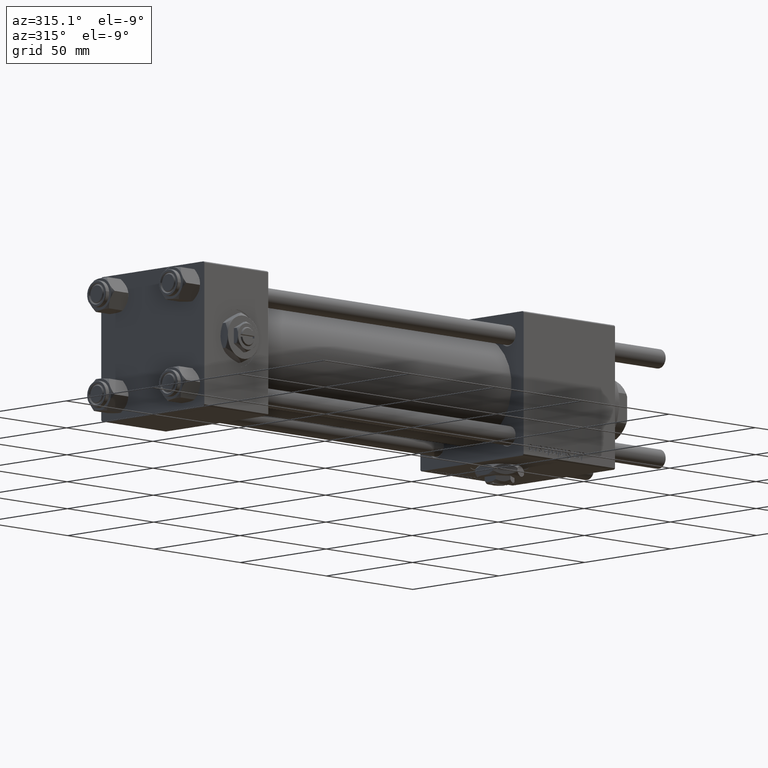
[diagram: clean part render]
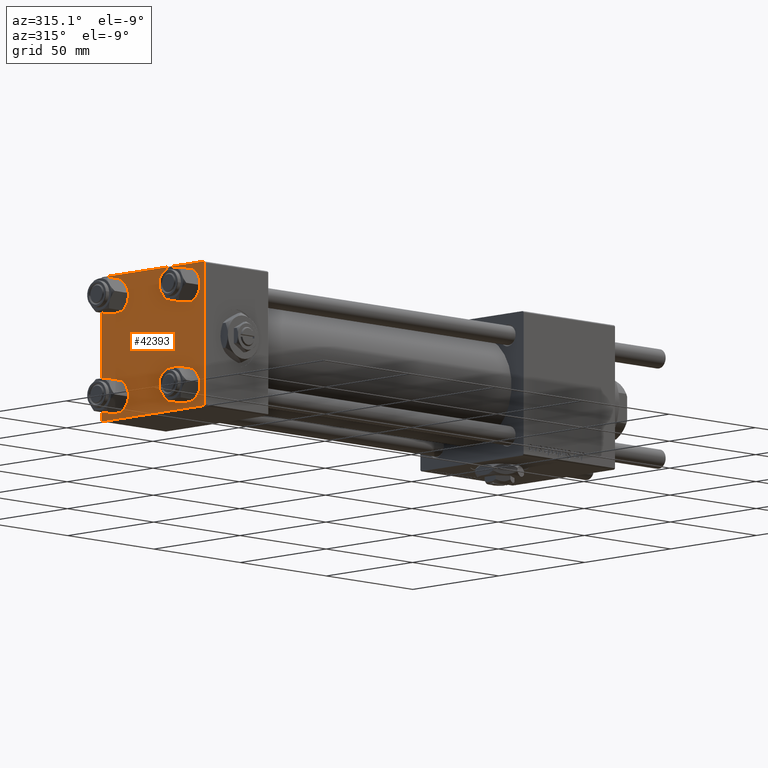
[diagram: same view with one face highlighted and labeled with its STEP entity id]
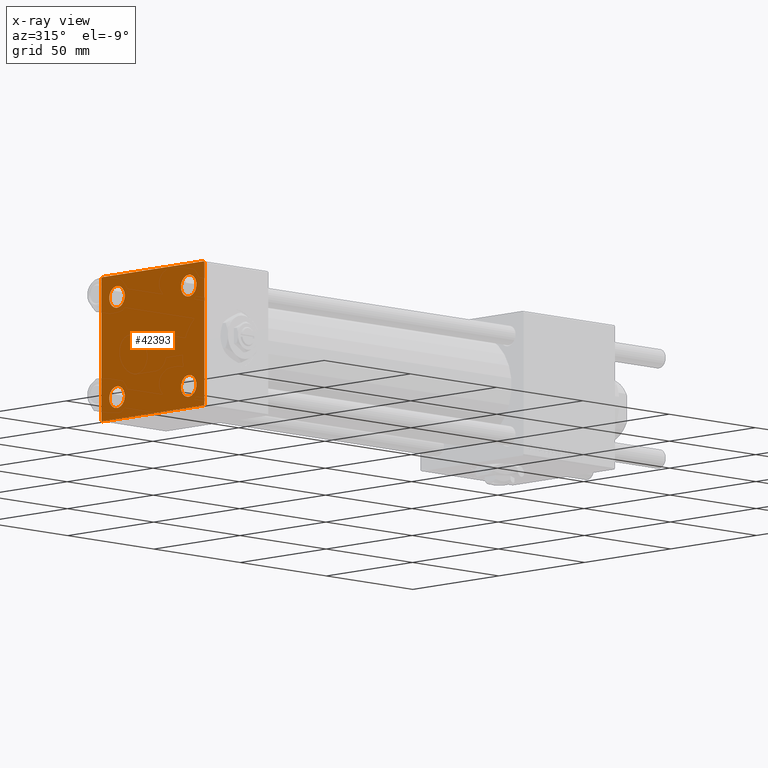
[diagram: x-ray of the same camera — body ghosted, the highlighted face saturated]
A machine part, auxiliary view. The second image highlights one B-rep face of the part: STEP entity #42393.
The next image is the same camera in x-ray: the body ghosted, the highlighted face saturated — about 0% of this face is hidden behind the body in this view.
In plain terms, the highlighted planar face has unit normal (-1, 0, 0).
Its self-contained STEP definition (entity closure, byte-faithful):
#295 = CARTESIAN_POINT ( 'NONE',  ( 0.000000000000000000, 29.74999999999957723, -29.75000000000040501 ) ) ;
#990 = CARTESIAN_POINT ( 'NONE',  ( 0.000000000000000000, 20.84999999999999787, 25.35000000000001918 ) ) ;
#1857 = VERTEX_POINT ( 'NONE', #57124 ) ;
#1952 = VERTEX_POINT ( 'NONE', #47504 ) ;
#3067 = FACE_BOUND ( 'NONE', #30590, .T. ) ;
#4146 = DIRECTION ( 'NONE',  ( -0.000000000000000000, 0.7071067811865474617, 0.7071067811865474617 ) ) ;
#4484 = EDGE_CURVE ( 'NONE', #39561, #18019, #29228, .T. ) ;
#4547 = CIRCLE ( 'NONE', #45555, 4.500000000000017764 ) ;
#4677 = DIRECTION ( 'NONE',  ( 0.000000000000000000, 0.7071067811865474617, -0.7071067811865474617 ) ) ;
#4901 = VECTOR ( 'NONE', #41477, 1000.000000000000114 ) ;
#5150 = CIRCLE ( 'NONE', #56682, 4.500000000000017764 ) ;
#5725 = CARTESIAN_POINT ( 'NONE',  ( 0.000000000000000000, -20.84999999999999076, -25.35000000000002274 ) ) ;
#7630 = EDGE_LOOP ( 'NONE', ( #45533, #48905, #54033, #34002, #16167, #29853, #8205, #13067 ) ) ;
#8205 = ORIENTED_EDGE ( 'NONE', *, *, #20134, .F. ) ;
#8341 = EDGE_CURVE ( 'NONE', #52049, #35534, #5150, .T. ) ;
#8523 = CARTESIAN_POINT ( 'NONE',  ( 0.000000000000000000, 29.99999999999999289, -29.50000000000000000 ) ) ;
#9985 = EDGE_CURVE ( 'NONE', #18019, #17246, #13731, .T. ) ;
#10493 = VERTEX_POINT ( 'NONE', #31193 ) ;
#10597 = ORIENTED_EDGE ( 'NONE', *, *, #18493, .T. ) ;
#11152 = FACE_BOUND ( 'NONE', #15571, .T. ) ;
#11453 = PLANE ( 'NONE',  #52217 ) ;
#11723 = CARTESIAN_POINT ( 'NONE',  ( 0.000000000000000000, 29.99999999999999289, 29.50000000000000000 ) ) ;
#11736 = FACE_BOUND ( 'NONE', #23504, .T. ) ;
#12021 = CARTESIAN_POINT ( 'NONE',  ( 0.000000000000000000, 0.000000000000000000, 0.000000000000000000 ) ) ;
#12153 = EDGE_CURVE ( 'NONE', #17246, #1857, #25354, .T. ) ;
#13067 = ORIENTED_EDGE ( 'NONE', *, *, #27996, .T. ) ;
#13088 = CARTESIAN_POINT ( 'NONE',  ( -0.000000000000000000, -29.74999999999999645, 29.74999999999999645 ) ) ;
#13187 = LINE ( 'NONE', #55507, #4901 ) ;
#13247 = AXIS2_PLACEMENT_3D ( 'NONE', #18181, #22961, #53716 ) ;
#13731 = LINE ( 'NONE', #295, #19513 ) ;
#14886 = VERTEX_POINT ( 'NONE', #57578 ) ;
#15571 = EDGE_LOOP ( 'NONE', ( #55574, #32541 ) ) ;
#16167 = ORIENTED_EDGE ( 'NONE', *, *, #55206, .F. ) ;
#16275 = VECTOR ( 'NONE', #28865, 1000.000000000000000 ) ;
#16599 = VECTOR ( 'NONE', #39978, 1000.000000000000000 ) ;
#17246 = VERTEX_POINT ( 'NONE', #17715 ) ;
#17499 = DIRECTION ( 'NONE',  ( 0.000000000000000000, 0.000000000000000000, 1.000000000000000000 ) ) ;
#17715 = CARTESIAN_POINT ( 'NONE',  ( 0.000000000000000000, 29.49999999999997868, -30.00000000000000000 ) ) ;
#17907 = VERTEX_POINT ( 'NONE', #30892 ) ;
#18019 = VERTEX_POINT ( 'NONE', #8523 ) ;
#18181 = CARTESIAN_POINT ( 'NONE',  ( 0.000000000000000000, 20.84999999999999787, -20.85000000000000142 ) ) ;
#18237 = CIRCLE ( 'NONE', #26797, 4.500000000000017764 ) ;
#18275 = VECTOR ( 'NONE', #42997, 1000.000000000000000 ) ;
#18461 = DIRECTION ( 'NONE',  ( 0.000000000000000000, 0.000000000000000000, 1.000000000000000000 ) ) ;
#18493 = EDGE_CURVE ( 'NONE', #35534, #52049, #50194, .T. ) ;
#18704 = ORIENTED_EDGE ( 'NONE', *, *, #50218, .T. ) ;
#19513 = VECTOR ( 'NONE', #28339, 999.9999999999998863 ) ;
#19890 = CARTESIAN_POINT ( 'NONE',  ( 0.000000000000000000, 29.49999999999999289, 30.00000000000000000 ) ) ;
#20134 = EDGE_CURVE ( 'NONE', #45052, #17907, #22213, .T. ) ;
#20427 = VERTEX_POINT ( 'NONE', #36962 ) ;
#20983 = ORIENTED_EDGE ( 'NONE', *, *, #48182, .T. ) ;
#21053 = VECTOR ( 'NONE', #4146, 1000.000000000000114 ) ;
#21971 = CARTESIAN_POINT ( 'NONE',  ( 0.000000000000000000, -20.84999999999999076, 25.35000000000002274 ) ) ;
#22213 = LINE ( 'NONE', #40423, #54018 ) ;
#22671 = EDGE_CURVE ( 'NONE', #1952, #14886, #4547, .T. ) ;
#22918 = DIRECTION ( 'NONE',  ( 1.000000000000000000, -0.000000000000000000, 0.000000000000000000 ) ) ;
#22961 = DIRECTION ( 'NONE',  ( 1.000000000000000000, -0.000000000000000000, 0.000000000000000000 ) ) ;
#23504 = EDGE_LOOP ( 'NONE', ( #20983, #24020 ) ) ;
#24020 = ORIENTED_EDGE ( 'NONE', *, *, #56760, .T. ) ;
#25354 = LINE ( 'NONE', #58174, #16599 ) ;
#25456 = DIRECTION ( 'NONE',  ( -0.000000000000000000, 0.000000000000000000, 1.000000000000000000 ) ) ;
#26797 = AXIS2_PLACEMENT_3D ( 'NONE', #38591, #29904, #57381 ) ;
#27114 = CARTESIAN_POINT ( 'NONE',  ( 0.000000000000000000, 20.84999999999999787, 20.85000000000000142 ) ) ;
#27996 = EDGE_CURVE ( 'NONE', #45052, #39561, #49161, .T. ) ;
#28339 = DIRECTION ( 'NONE',  ( -0.000000000000000000, -0.7071067811865574537, -0.7071067811865376918 ) ) ;
#28865 = DIRECTION ( 'NONE',  ( 0.000000000000000000, 0.000000000000000000, -1.000000000000000000 ) ) ;
#29228 = LINE ( 'NONE', #52231, #18275 ) ;
#29853 = ORIENTED_EDGE ( 'NONE', *, *, #56153, .T. ) ;
#29904 = DIRECTION ( 'NONE',  ( 1.000000000000000000, -0.000000000000000000, 0.000000000000000000 ) ) ;
#30067 = VERTEX_POINT ( 'NONE', #48379 ) ;
#30579 = ORIENTED_EDGE ( 'NONE', *, *, #22671, .T. ) ;
#30590 = EDGE_LOOP ( 'NONE', ( #10597, #32495 ) ) ;
#30892 = CARTESIAN_POINT ( 'NONE',  ( 0.000000000000000000, -29.49999999999998579, 29.99999999999999289 ) ) ;
#31193 = CARTESIAN_POINT ( 'NONE',  ( 0.000000000000000000, -30.00000000000000000, 29.49999999999999289 ) ) ;
#31239 = VECTOR ( 'NONE', #4677, 1000.000000000000114 ) ;
#32045 = AXIS2_PLACEMENT_3D ( 'NONE', #27114, #54290, #49214 ) ;
#32495 = ORIENTED_EDGE ( 'NONE', *, *, #8341, .T. ) ;
#32541 = ORIENTED_EDGE ( 'NONE', *, *, #46656, .T. ) ;
#32588 = CARTESIAN_POINT ( 'NONE',  ( 0.000000000000000000, -20.84999999999999076, 20.85000000000000497 ) ) ;
#34002 = ORIENTED_EDGE ( 'NONE', *, *, #58819, .T. ) ;
#34384 = VERTEX_POINT ( 'NONE', #21971 ) ;
#35534 = VERTEX_POINT ( 'NONE', #990 ) ;
#36089 = EDGE_CURVE ( 'NONE', #20427, #40568, #36277, .T. ) ;
#36132 = AXIS2_PLACEMENT_3D ( 'NONE', #37957, #42749, #38259 ) ;
#36277 = CIRCLE ( 'NONE', #55391, 4.500000000000017764 ) ;
#36372 = CARTESIAN_POINT ( 'NONE',  ( 0.000000000000000000, 20.84999999999999787, 20.85000000000000142 ) ) ;
#36962 = CARTESIAN_POINT ( 'NONE',  ( 0.000000000000000000, -20.84999999999999076, -16.34999999999998721 ) ) ;
#37957 = CARTESIAN_POINT ( 'NONE',  ( 0.000000000000000000, -20.84999999999999076, -20.85000000000000497 ) ) ;
#38259 = DIRECTION ( 'NONE',  ( 0.000000000000000000, 0.000000000000000000, 1.000000000000000000 ) ) ;
#38591 = CARTESIAN_POINT ( 'NONE',  ( 0.000000000000000000, -20.84999999999999076, 20.85000000000000497 ) ) ;
#38821 = EDGE_LOOP ( 'NONE', ( #30579, #18704 ) ) ;
#38914 = CARTESIAN_POINT ( 'NONE',  ( 0.000000000000000000, -30.00000000000000000, -29.50000000000001776 ) ) ;
#38999 = CIRCLE ( 'NONE', #13247, 4.500000000000017764 ) ;
#39490 = FACE_BOUND ( 'NONE', #38821, .T. ) ;
#39561 = VERTEX_POINT ( 'NONE', #11723 ) ;
#39978 = DIRECTION ( 'NONE',  ( 0.000000000000000000, -1.000000000000000000, -1.156482317317871725E-16 ) ) ;
#40423 = CARTESIAN_POINT ( 'NONE',  ( 0.000000000000000000, 29.99999999999999289, 30.00000000000000000 ) ) ;
#40568 = VERTEX_POINT ( 'NONE', #5725 ) ;
#41129 = DIRECTION ( 'NONE',  ( 0.000000000000000000, 0.000000000000000000, 1.000000000000000000 ) ) ;
#41369 = VERTEX_POINT ( 'NONE', #38914 ) ;
#41477 = DIRECTION ( 'NONE',  ( 0.000000000000000000, -0.7071067811865474617, 0.7071067811865474617 ) ) ;
#42393 = ADVANCED_FACE ( 'NONE', ( #11736, #11152, #39490, #3067, #48448 ), #11453, .T. ) ;
#42749 = DIRECTION ( 'NONE',  ( 1.000000000000000000, -0.000000000000000000, 0.000000000000000000 ) ) ;
#42997 = DIRECTION ( 'NONE',  ( 0.000000000000000000, 0.000000000000000000, -1.000000000000000000 ) ) ;
#44440 = CARTESIAN_POINT ( 'NONE',  ( 0.000000000000000000, 20.84999999999999787, 16.34999999999998366 ) ) ;
#45020 = CARTESIAN_POINT ( 'NONE',  ( 0.000000000000000000, 20.84999999999999787, -20.85000000000000142 ) ) ;
#45052 = VERTEX_POINT ( 'NONE', #19890 ) ;
#45288 = CARTESIAN_POINT ( 'NONE',  ( 0.000000000000000000, 29.74999999999999645, 29.74999999999999645 ) ) ;
#45533 = ORIENTED_EDGE ( 'NONE', *, *, #4484, .T. ) ;
#45555 = AXIS2_PLACEMENT_3D ( 'NONE', #45020, #22918, #41129 ) ;
#46656 = EDGE_CURVE ( 'NONE', #40568, #20427, #48543, .T. ) ;
#46804 = LINE ( 'NONE', #55472, #16275 ) ;
#47035 = LINE ( 'NONE', #13088, #21053 ) ;
#47504 = CARTESIAN_POINT ( 'NONE',  ( 0.000000000000000000, 20.84999999999999787, -16.34999999999998366 ) ) ;
#47615 = AXIS2_PLACEMENT_3D ( 'NONE', #32588, #55601, #50231 ) ;
#48182 = EDGE_CURVE ( 'NONE', #34384, #30067, #52388, .T. ) ;
#48379 = CARTESIAN_POINT ( 'NONE',  ( 0.000000000000000000, -20.84999999999999076, 16.34999999999998721 ) ) ;
#48448 = FACE_OUTER_BOUND ( 'NONE', #7630, .T. ) ;
#48543 = CIRCLE ( 'NONE', #36132, 4.500000000000017764 ) ;
#48905 = ORIENTED_EDGE ( 'NONE', *, *, #9985, .T. ) ;
#49161 = LINE ( 'NONE', #45288, #31239 ) ;
#49214 = DIRECTION ( 'NONE',  ( 0.000000000000000000, 0.000000000000000000, 1.000000000000000000 ) ) ;
#50120 = DIRECTION ( 'NONE',  ( 1.000000000000000000, -0.000000000000000000, 0.000000000000000000 ) ) ;
#50194 = CIRCLE ( 'NONE', #32045, 4.500000000000017764 ) ;
#50218 = EDGE_CURVE ( 'NONE', #14886, #1952, #38999, .T. ) ;
#50231 = DIRECTION ( 'NONE',  ( 0.000000000000000000, 0.000000000000000000, 1.000000000000000000 ) ) ;
#52049 = VERTEX_POINT ( 'NONE', #44440 ) ;
#52217 = AXIS2_PLACEMENT_3D ( 'NONE', #12021, #57407, #25456 ) ;
#52231 = CARTESIAN_POINT ( 'NONE',  ( 0.000000000000000000, 29.99999999999999289, 30.00000000000000000 ) ) ;
#52388 = CIRCLE ( 'NONE', #47615, 4.500000000000017764 ) ;
#52747 = CARTESIAN_POINT ( 'NONE',  ( 0.000000000000000000, -20.84999999999999076, -20.85000000000000497 ) ) ;
#53331 = DIRECTION ( 'NONE',  ( 1.000000000000000000, -0.000000000000000000, 0.000000000000000000 ) ) ;
#53716 = DIRECTION ( 'NONE',  ( 0.000000000000000000, 0.000000000000000000, 1.000000000000000000 ) ) ;
#54018 = VECTOR ( 'NONE', #58614, 1000.000000000000000 ) ;
#54033 = ORIENTED_EDGE ( 'NONE', *, *, #12153, .T. ) ;
#54290 = DIRECTION ( 'NONE',  ( 1.000000000000000000, -0.000000000000000000, 0.000000000000000000 ) ) ;
#55206 = EDGE_CURVE ( 'NONE', #10493, #41369, #46804, .T. ) ;
#55391 = AXIS2_PLACEMENT_3D ( 'NONE', #52747, #53331, #17499 ) ;
#55472 = CARTESIAN_POINT ( 'NONE',  ( 0.000000000000000000, -30.00000000000000000, 29.99999999999999289 ) ) ;
#55507 = CARTESIAN_POINT ( 'NONE',  ( 0.000000000000000000, -29.75000000000001066, -29.75000000000001066 ) ) ;
#55574 = ORIENTED_EDGE ( 'NONE', *, *, #36089, .T. ) ;
#55601 = DIRECTION ( 'NONE',  ( 1.000000000000000000, -0.000000000000000000, 0.000000000000000000 ) ) ;
#56153 = EDGE_CURVE ( 'NONE', #10493, #17907, #47035, .T. ) ;
#56682 = AXIS2_PLACEMENT_3D ( 'NONE', #36372, #50120, #18461 ) ;
#56760 = EDGE_CURVE ( 'NONE', #30067, #34384, #18237, .T. ) ;
#57124 = CARTESIAN_POINT ( 'NONE',  ( 0.000000000000000000, -29.50000000000000000, -30.00000000000000711 ) ) ;
#57381 = DIRECTION ( 'NONE',  ( 0.000000000000000000, 0.000000000000000000, 1.000000000000000000 ) ) ;
#57407 = DIRECTION ( 'NONE',  ( -1.000000000000000000, 0.000000000000000000, -0.000000000000000000 ) ) ;
#57578 = CARTESIAN_POINT ( 'NONE',  ( 0.000000000000000000, 20.84999999999999787, -25.35000000000001918 ) ) ;
#58174 = CARTESIAN_POINT ( 'NONE',  ( 0.000000000000000000, 29.99999999999999289, -30.00000000000000000 ) ) ;
#58614 = DIRECTION ( 'NONE',  ( 0.000000000000000000, -1.000000000000000000, -1.156482317317871725E-16 ) ) ;
#58819 = EDGE_CURVE ( 'NONE', #1857, #41369, #13187, .T. ) ;